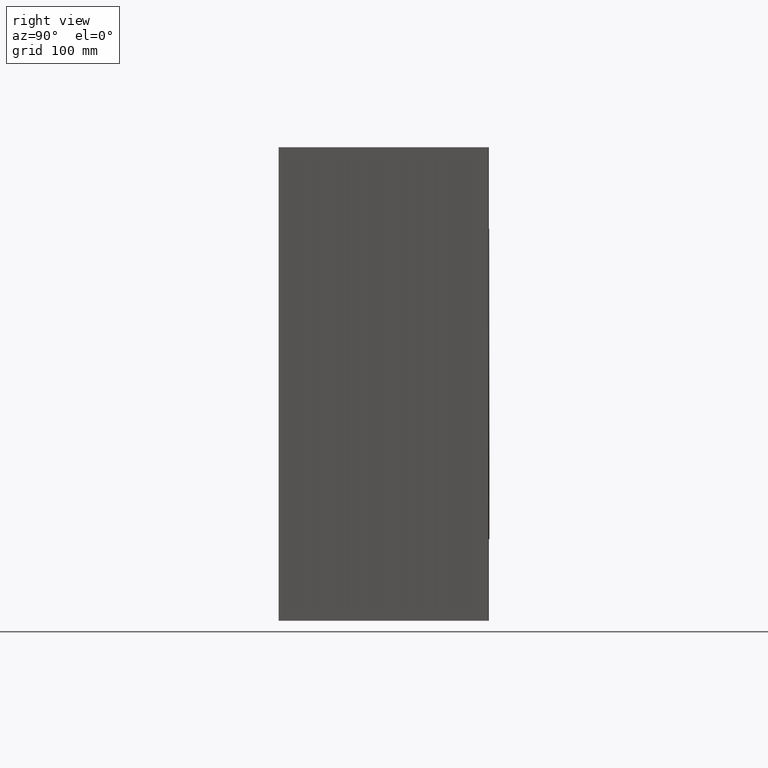
[diagram: clean part render]
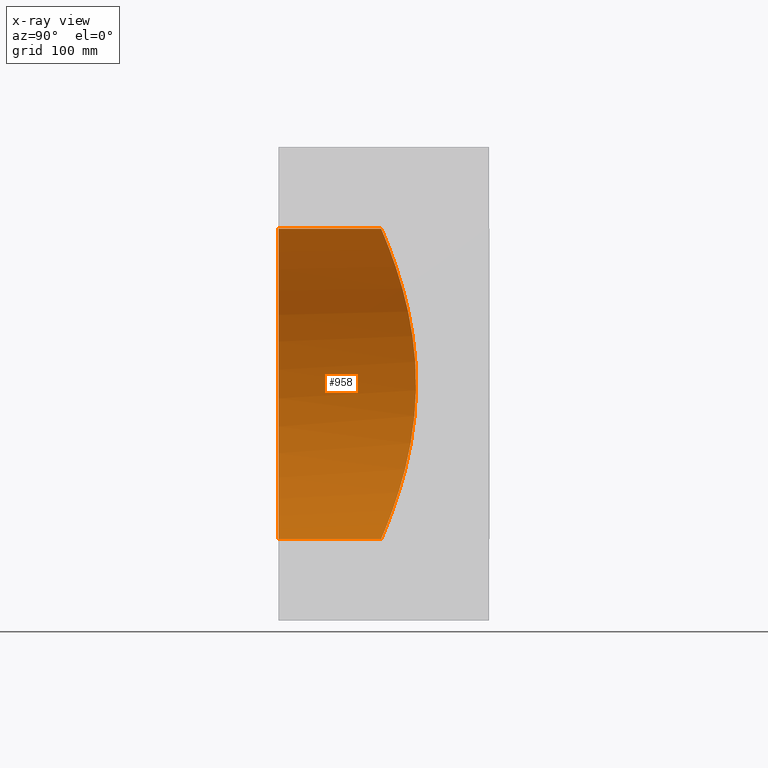
[diagram: x-ray — body ghosted, one internal face saturated and labeled with its STEP entity id]
A machine part, right view, then the same camera in x-ray: the body is ghosted and one INTERNAL B-rep face — a face not visible from any outside direction — is saturated and labeled: STEP entity #958.
In plain terms, the highlighted cylindrical surface (partial cylindrical patch) has radius 254 mm, axis along (0, -1, -0).
Its self-contained STEP definition (entity closure, byte-faithful):
#16 = CARTESIAN_POINT ( 'NONE',  ( -167.7446199373760578, 191.9591785279419582, 190.7742387784999210 ) ) ;
#19 = B_SPLINE_CURVE_WITH_KNOTS ( 'NONE', 3,
 ( #384, #639, #169, #186, #241, #313, #801, #180, #694, #946, #625, #773, #564, #631, #119, #321, #90, #874, #781, #98, #191, #701, #480, #400, #16, #618, #487, #173, #935, #787, #390, #711, #928, #541, #853, #466, #23, #248, #868, #550, #39, #256, #557, #859, #473, #793, #106, #115, #407, #337, #276, #508, #512, #431, #653, #959, #818, #420, #589, #742, #200, #973, #894, #126, #887, #735, #347, #656, #667, #63, #138, #661, #54, #357, #962, #578, #732, #285, #885, #582, #273, #215, #891, #51, #900, #349, #197, #823, #575, #204, #496, #809, #499, #503, #815, #813, #133, #131, #423, #427, #737, #56, #209, #351, #967, #281, #111, #691, #168, #405 ),
 .UNSPECIFIED., .F., .F.,
 ( 4, 2, 2, 2, 2, 2, 2, 2, 2, 2, 2, 2, 2, 2, 2, 2, 2, 2, 2, 2, 2, 2, 2, 2, 2, 2, 2, 2, 2, 2, 2, 2, 2, 2, 2, 2, 2, 2, 2, 2, 2, 2, 2, 2, 2, 2, 2, 2, 2, 2, 2, 2, 2, 2, 4 ),
 ( 0.8039653402823760953, 0.8290662158491932665, 0.8353414347408976148, 0.8416166536326019632, 0.8541670914160105488, 0.8792679669828278310, 0.9043688425496451133, 0.9106440614413493506, 0.9169192803330536989, 0.9294697181164623956, 0.9545705936832795668, 0.9796714692500968491, 0.9922219070335054347, 0.9984971259252097830, 1.004772344816914131, 1.029873220383731081, 1.054974095950548252, 1.080074971517365423, 1.086350190409069771, 1.092625409300773898, 1.105175847084182372, 1.130276722650999321, 1.155377598217816271, 1.167928036001224745, 1.174203254892928872, 1.180478473784633220, 1.205579349351450169, 1.230680224918266896, 1.243230662701675371, 1.249505881593379497, 1.255781100485083845, 1.280881976051900573, 1.305982851618717522, 1.331083727185534471, 1.337358946077238375, 1.343634164968942724, 1.356184602752350976, 1.381285478319167925, 1.406386353885984430, 1.412661572777688557, 1.418936791669392683, 1.431487229452801380, 1.456588105019618329, 1.481688980586435278, 1.494239418369843975, 1.500514637261548323, 1.506789856153252449, 1.531890731720069621, 1.556991607286886570, 1.582092482853703963, 1.588367701745408089, 1.594642920637112438, 1.600918139528816786, 1.604055748974668738, 1.607193358420520912 ),
 .UNSPECIFIED. ) ;
#23 = CARTESIAN_POINT ( 'NONE',  ( -225.6538562742526892, 212.3592979177754785, 116.6219596265445233 ) ) ;
#31 = EDGE_CURVE ( 'NONE', #906, #467, #265, .T. ) ;
#39 = CARTESIAN_POINT ( 'NONE',  ( -232.8237990720853929, 215.3629202603104318, 101.6180321282059253 ) ) ;
#51 = CARTESIAN_POINT ( 'NONE',  ( -155.0348342550607867, 188.3351085430220735, -201.3648420486783550 ) ) ;
#54 = CARTESIAN_POINT ( 'NONE',  ( -213.2197007972301606, 207.4016718087703168, -138.0951427610688711 ) ) ;
#56 = CARTESIAN_POINT ( 'NONE',  ( -16.98756145259244477, 167.9877803526233890, -253.4401756340516840 ) ) ;
#63 = CARTESIAN_POINT ( 'NONE',  ( -219.6829387557973803, 209.9400254619303325, -127.5136056674370195 ) ) ;
#68 = ORIENTED_EDGE ( 'NONE', *, *, #214, .T. ) ;
#90 = CARTESIAN_POINT ( 'NONE',  ( -107.4884534427931442, 177.5681779628506547, 230.1447618988494526 ) ) ;
#93 = CARTESIAN_POINT ( 'NONE',  ( 3.110602869834276550E-14, -3.110602869834277181E-14, 253.9999999999999432 ) ) ;
#98 = CARTESIAN_POINT ( 'NONE',  ( -127.8226734394265520, 181.6402548994499568, 219.6501722694441128 ) ) ;
#100 = CARTESIAN_POINT ( 'NONE',  ( 3.110602869834276550E-14, -5.886160431397169163E-14, 253.9999999999999432 ) ) ;
#106 = CARTESIAN_POINT ( 'NONE',  ( -250.5328124634897904, 223.2700100050191168, 42.03737018607849762 ) ) ;
#111 = CARTESIAN_POINT ( 'NONE',  ( -4.250568631534159536, 167.7624710219972144, -253.9666545677669092 ) ) ;
#115 = CARTESIAN_POINT ( 'NONE',  ( -251.4769673836931929, 223.7114530202344440, 35.77418802373816220 ) ) ;
#119 = CARTESIAN_POINT ( 'NONE',  ( -101.7751034771621619, 176.5439619056177492, 232.7277185874757492 ) ) ;
#126 = CARTESIAN_POINT ( 'NONE',  ( -240.4407538154150643, 218.6740366586252549, -82.30216103953341644 ) ) ;
#131 = CARTESIAN_POINT ( 'NONE',  ( -42.11289270684206798, 169.1885769616677067, -250.6232531080181900 ) ) ;
#133 = CARTESIAN_POINT ( 'NONE',  ( -58.45747839641314414, 170.5795744955916007, -247.3221258806348999 ) ) ;
#138 = CARTESIAN_POINT ( 'NONE',  ( -218.6352207272893509, 209.5232285698341173, -129.3016574617243748 ) ) ;
#168 = CARTESIAN_POINT ( 'NONE',  ( -1.061799262410094924, 167.7481887986639890, -253.9999999999998295 ) ) ;
#169 = CARTESIAN_POINT ( 'NONE',  ( -16.75106011277696183, 167.9252307871824428, 253.5875208976789850 ) ) ;
#173 = CARTESIAN_POINT ( 'NONE',  ( -176.8413384805532758, 194.7282268641729104, 182.3387597661833865 ) ) ;
#176 = CARTESIAN_POINT ( 'NONE',  ( 0.0000000000000000000, 0.0000000000000000000, 0.0000000000000000000 ) ) ;
#180 = CARTESIAN_POINT ( 'NONE',  ( -41.92945206066749364, 169.2175591449280319, 250.5510122075870072 ) ) ;
#186 = CARTESIAN_POINT ( 'NONE',  ( -27.24886296191111512, 168.3708465878000027, 252.5429691466458735 ) ) ;
#187 = ORIENTED_EDGE ( 'NONE', *, *, #31, .F. ) ;
#191 = CARTESIAN_POINT ( 'NONE',  ( -134.8791131022358911, 183.2484444829904930, 215.3860594890611253 ) ) ;
#197 = CARTESIAN_POINT ( 'NONE',  ( -127.8075092663349892, 181.6372749040881445, -219.6578076155993244 ) ) ;
#200 = CARTESIAN_POINT ( 'NONE',  ( -249.4566827714715771, 222.7699610586555536, -47.87315041408866989 ) ) ;
#204 = CARTESIAN_POINT ( 'NONE',  ( -107.5587432652166626, 177.5811682568763672, -230.1118305560276838 ) ) ;
#209 = CARTESIAN_POINT ( 'NONE',  ( -14.86474387199813663, 167.9307268374984687, -253.5735642483337813 ) ) ;
#214 = EDGE_CURVE ( 'NONE', #225, #467, #671, .T. ) ;
#215 = CARTESIAN_POINT ( 'NONE',  ( -167.6757351597067895, 191.9388564708600313, -190.8348171822387087 ) ) ;
#225 = VERTEX_POINT ( 'NONE', #100 ) ;
#241 = CARTESIAN_POINT ( 'NONE',  ( -29.34937931753479035, 168.4711905815276793, 252.3075482883832024 ) ) ;
#248 = CARTESIAN_POINT ( 'NONE',  ( -227.5373199321938671, 213.1381025775584988, 112.9031104826210736 ) ) ;
#256 = CARTESIAN_POINT ( 'NONE',  ( -237.6066913755457790, 217.4212978521460968, 90.15344522223057311 ) ) ;
#265 = LINE ( 'NONE', #806, #426 ) ;
#273 = CARTESIAN_POINT ( 'NONE',  ( -172.2654494099586771, 193.3187507927367506, -186.6678462996951282 ) ) ;
#276 = CARTESIAN_POINT ( 'NONE',  ( -252.5306111584210669, 224.2061640067578878, 27.36335481777674872 ) ) ;
#281 = CARTESIAN_POINT ( 'NONE',  ( -5.312749543296066967, 167.7710370536334494, -253.9466539886837211 ) ) ;
#285 = CARTESIAN_POINT ( 'NONE',  ( -178.2558721717871038, 195.1722142043649626, -180.9560651650307079 ) ) ;
#295 = FACE_OUTER_BOUND ( 'NONE', #481, .T. ) ;
#307 = VECTOR ( 'NONE', #314, 1000.000000000000000 ) ;
#313 = CARTESIAN_POINT ( 'NONE',  ( -33.55234300634887035, 168.6944167794236762, 251.7830917047522234 ) ) ;
#314 = DIRECTION ( 'NONE',  ( 0.0000000000000000000, -1.000000000000000000, -1.224646799147353454E-16 ) ) ;
#316 = ORIENTED_EDGE ( 'NONE', *, *, #492, .F. ) ;
#321 = CARTESIAN_POINT ( 'NONE',  ( -105.5886358643135026, 177.2211625318403208, 231.0225154893605009 ) ) ;
#337 = CARTESIAN_POINT ( 'NONE',  ( -252.2939211728870816, 224.0947977384612386, 29.46650131738460487 ) ) ;
#347 = CARTESIAN_POINT ( 'NONE',  ( -227.6795668315899945, 213.1816034797883503, -112.9047101360959431 ) ) ;
#349 = CARTESIAN_POINT ( 'NONE',  ( -134.8441044775073294, 183.2404362480139639, -215.4073235872259033 ) ) ;
#351 = CARTESIAN_POINT ( 'NONE',  ( -10.62128458197945768, 167.8395178127467489, -253.7867242584065934 ) ) ;
#354 = ORIENTED_EDGE ( 'NONE', *, *, #422, .T. ) ;
#357 = CARTESIAN_POINT ( 'NONE',  ( -206.3468517990314126, 204.7859495735013695, -148.3395220488120003 ) ) ;
#384 = CARTESIAN_POINT ( 'NONE',  ( 3.110656223077602607E-14, 167.7481887986640743, 253.9999999999999432 ) ) ;
#390 = CARTESIAN_POINT ( 'NONE',  ( -191.1033671966806935, 199.3581514455874810, 167.5184378686720379 ) ) ;
#394 = DIRECTION ( 'NONE',  ( 0.0000000000000000000, -1.000000000000000000, -1.224646799147353454E-16 ) ) ;
#400 = CARTESIAN_POINT ( 'NONE',  ( -164.6280477816947609, 191.0487118633849661, 193.4696914031733002 ) ) ;
#405 = CARTESIAN_POINT ( 'NONE',  ( 0.0000000000000000000, 167.7481887986640459, -253.9999999999998863 ) ) ;
#407 = CARTESIAN_POINT ( 'NONE',  ( -251.7667397516346739, 223.8472728448554960, 33.67500728301410362 ) ) ;
#420 = CARTESIAN_POINT ( 'NONE',  ( -250.9095640811042074, 223.4461247220338009, -39.55775245291005149 ) ) ;
#422 = EDGE_CURVE ( 'NONE', #784, #225, #848, .T. ) ;
#423 = CARTESIAN_POINT ( 'NONE',  ( -33.82830732110428329, 168.6541359738757819, -251.8788437250852326 ) ) ;
#426 = VECTOR ( 'NONE', #554, 1000.000000000000000 ) ;
#427 = CARTESIAN_POINT ( 'NONE',  ( -23.32594556870494884, 168.2034053655936532, -252.9354797307147749 ) ) ;
#431 = CARTESIAN_POINT ( 'NONE',  ( -254.0029112069883013, 224.9016425665687677, -8.284842479212453981 ) ) ;
#466 = CARTESIAN_POINT ( 'NONE',  ( -224.6880616091489173, 211.9627979871164882, 118.4719213125589761 ) ) ;
#467 = VERTEX_POINT ( 'NONE', #948 ) ;
#468 = CARTESIAN_POINT ( 'NONE',  ( 0.0000000000000000000, -2.775557561562891351E-14, 0.0000000000000000000 ) ) ;
#473 = CARTESIAN_POINT ( 'NONE',  ( -247.3179748971849392, 221.7805178990628860, 58.47948239573771190 ) ) ;
#480 = CARTESIAN_POINT ( 'NONE',  ( -155.1028611554629606, 188.3535216254281579, 201.3126049048931918 ) ) ;
#481 = EDGE_LOOP ( 'NONE', ( #316, #354, #68, #187 ) ) ;
#487 = CARTESIAN_POINT ( 'NONE',  ( -173.8469818141246890, 193.8013806957911243, 185.1958671860227241 ) ) ;
#492 = EDGE_CURVE ( 'NONE', #784, #906, #19, .T. ) ;
#496 = CARTESIAN_POINT ( 'NONE',  ( -105.6638235753479194, 177.2347595466483199, -230.9881770003695181 ) ) ;
#499 = CARTESIAN_POINT ( 'NONE',  ( -99.91497458688635902, 176.2228815965570732, -233.5324013627754312 ) ) ;
#503 = CARTESIAN_POINT ( 'NONE',  ( -90.25558593553056141, 174.6045888932444257, -237.5712173956172819 ) ) ;
#508 = CARTESIAN_POINT ( 'NONE',  ( -253.5811056219069428, 224.7010958030246002, 16.85310103332201237 ) ) ;
#512 = CARTESIAN_POINT ( 'NONE',  ( -253.9970577638513873, 224.8988679464332563, 8.462397050325794368 ) ) ;
#541 = CARTESIAN_POINT ( 'NONE',  ( -215.5063084306695202, 208.2720019675699916, 134.6859920144318608 ) ) ;
#550 = CARTESIAN_POINT ( 'NONE',  ( -231.1341190355670676, 214.6440126614410531, 105.4053888305886773 ) ) ;
#554 = DIRECTION ( 'NONE',  ( 0.0000000000000000000, -1.000000000000000000, -1.224646799147353454E-16 ) ) ;
#557 = CARTESIAN_POINT ( 'NONE',  ( -240.4145002452445397, 218.6624483583009351, 82.37393339020036365 ) ) ;
#564 = CARTESIAN_POINT ( 'NONE',  ( -90.24374401713588156, 174.6032327716396537, 237.5743784156504148 ) ) ;
#575 = CARTESIAN_POINT ( 'NONE',  ( -113.1972622661208732, 178.6399443827565960, -227.4197244612046802 ) ) ;
#578 = CARTESIAN_POINT ( 'NONE',  ( -191.0534302031509526, 199.3410605539008031, -167.5759735541234647 ) ) ;
#582 = CARTESIAN_POINT ( 'NONE',  ( -173.7828399568214479, 193.7817148077005527, -185.2560591087325861 ) ) ;
#589 = CARTESIAN_POINT ( 'NONE',  ( -250.5729258050987767, 223.2890096238707827, -41.63724912714763349 ) ) ;
#618 = CARTESIAN_POINT ( 'NONE',  ( -172.3312526909245435, 193.3387349854169770, 186.6070906231578590 ) ) ;
#621 = DIRECTION ( 'NONE',  ( 0.0000000000000000000, 1.224646799147353454E-16, -1.000000000000000000 ) ) ;
#625 = CARTESIAN_POINT ( 'NONE',  ( -66.50524338809792368, 171.4347069064282323, 245.2800817273701171 ) ) ;
#631 = CARTESIAN_POINT ( 'NONE',  ( -99.86007571886582923, 176.2135294729258987, 233.5557967398490860 ) ) ;
#639 = CARTESIAN_POINT ( 'NONE',  ( -8.368078583990106623, 167.7481887986640743, 253.9999999999998863 ) ) ;
#653 = CARTESIAN_POINT ( 'NONE',  ( -253.5927651043659523, 224.7066422920947559, -16.64137637730571839 ) ) ;
#656 = CARTESIAN_POINT ( 'NONE',  ( -222.7477187444005722, 211.1723630920878918, -122.0810999474792169 ) ) ;
#661 = CARTESIAN_POINT ( 'NONE',  ( -215.4330756774392057, 208.2603102066157135, -134.6168762207670113 ) ) ;
#667 = CARTESIAN_POINT ( 'NONE',  ( -221.7386536109239614, 210.7643746062970251, -123.9043288408791597 ) ) ;
#671 = CIRCLE ( 'NONE', #807, 253.9999999999999432 ) ;
#691 = CARTESIAN_POINT ( 'NONE',  ( -2.125679766164888296, 167.7510468946478568, -253.9933275729237607 ) ) ;
#694 = CARTESIAN_POINT ( 'NONE',  ( -46.07677825463157006, 169.5265976628233489, 249.8210061937363946 ) ) ;
#695 = DIRECTION ( 'NONE',  ( 0.0000000000000000000, 1.224646799147353454E-16, -1.000000000000000000 ) ) ;
#701 = CARTESIAN_POINT ( 'NONE',  ( -148.5192264260104196, 186.6050278903993842, 206.2172862669145843 ) ) ;
#711 = CARTESIAN_POINT ( 'NONE',  ( -201.4868279076510191, 203.0006391196800735, 154.8740848547043072 ) ) ;
#732 = CARTESIAN_POINT ( 'NONE',  ( -185.5431530734376508, 197.4896669991088629, -173.6599956447450381 ) ) ;
#735 = CARTESIAN_POINT ( 'NONE',  ( -231.2436329174383332, 214.6827662936541401, -105.4091671170124727 ) ) ;
#737 = CARTESIAN_POINT ( 'NONE',  ( -21.21812507361642730, 168.1241340779811253, -253.1210995509559041 ) ) ;
#742 = CARTESIAN_POINT ( 'NONE',  ( -249.8466620139826659, 222.9510096444398073, -45.79407321776893980 ) ) ;
#770 = CYLINDRICAL_SURFACE ( 'NONE', #965, 253.9999999999999432 ) ;
#773 = CARTESIAN_POINT ( 'NONE',  ( -82.41914399061221275, 173.4489362519615270, 240.4003964101353006 ) ) ;
#781 = CARTESIAN_POINT ( 'NONE',  ( -116.8678522845038401, 179.3663746352331145, 225.5551232142755680 ) ) ;
#783 = DIRECTION ( 'NONE',  ( 0.0000000000000000000, -1.000000000000000000, -1.224646799147353454E-16 ) ) ;
#784 = VERTEX_POINT ( 'NONE', #974 ) ;
#787 = CARTESIAN_POINT ( 'NONE',  ( -185.6002467156843636, 197.5085211093549447, 173.5988375787424900 ) ) ;
#793 = CARTESIAN_POINT ( 'NONE',  ( -249.8026381578164887, 222.9299344460050918, 46.17520559266102964 ) ) ;
#801 = CARTESIAN_POINT ( 'NONE',  ( -35.65564959980908810, 168.8173939891871953, 251.4938305778178176 ) ) ;
#806 = CARTESIAN_POINT ( 'NONE',  ( 0.0000000000000000000, 3.110602869834277181E-14, -253.9999999999999432 ) ) ;
#807 = AXIS2_PLACEMENT_3D ( 'NONE', #468, #783, #695 ) ;
#809 = CARTESIAN_POINT ( 'NONE',  ( -101.8425918585127334, 176.5557100610909629, -232.6982337923017781 ) ) ;
#813 = CARTESIAN_POINT ( 'NONE',  ( -66.51745358822454079, 171.4361866751068533, -245.2765090473451437 ) ) ;
#815 = CARTESIAN_POINT ( 'NONE',  ( -82.41650494590636811, 173.4486679481541671, -240.4010341800039328 ) ) ;
#818 = CARTESIAN_POINT ( 'NONE',  ( -251.8407089734128306, 223.8816067344820340, -33.31602932149660745 ) ) ;
#823 = CARTESIAN_POINT ( 'NONE',  ( -116.8946541439714224, 179.3718542813997203, -225.5409448423950494 ) ) ;
#848 = LINE ( 'NONE', #93, #307 ) ;
#853 = CARTESIAN_POINT ( 'NONE',  ( -219.7652597601259288, 209.9575627270870086, 127.6258959193556137 ) ) ;
#859 = CARTESIAN_POINT ( 'NONE',  ( -245.2701206374213996, 220.8420396954591070, 66.53694276752312931 ) ) ;
#868 = CARTESIAN_POINT ( 'NONE',  ( -228.4546478462760319, 213.5202546417447138, 111.0350986024366193 ) ) ;
#874 = CARTESIAN_POINT ( 'NONE',  ( -113.1544321408874936, 178.6314950552145717, 227.4414005823912532 ) ) ;
#885 = CARTESIAN_POINT ( 'NONE',  ( -176.7783910252812518, 194.7085624828760331, -182.3997899298931884 ) ) ;
#887 = CARTESIAN_POINT ( 'NONE',  ( -237.6242369067083189, 217.4289590129565113, -90.10789261580711695 ) ) ;
#891 = CARTESIAN_POINT ( 'NONE',  ( -164.5583495946700339, 191.0285795620327178, -193.5289369580791288 ) ) ;
#894 = CARTESIAN_POINT ( 'NONE',  ( -245.3169557452046377, 220.8632624138164999, -66.37012152322471081 ) ) ;
#900 = CARTESIAN_POINT ( 'NONE',  ( -148.4577797731553517, 186.5893045224829905, -206.2608426051296249 ) ) ;
#906 = VERTEX_POINT ( 'NONE', #919 ) ;
#919 = CARTESIAN_POINT ( 'NONE',  ( 0.0000000000000000000, 167.7481887986640459, -253.9999999999998863 ) ) ;
#928 = CARTESIAN_POINT ( 'NONE',  ( -206.3671282056657503, 204.7935913853615943, 148.3101271473824738 ) ) ;
#935 = CARTESIAN_POINT ( 'NONE',  ( -178.3180073810126487, 195.1918041904223742, 180.8948278503726499 ) ) ;
#946 = CARTESIAN_POINT ( 'NONE',  ( -58.41595703461554479, 170.5747115550514934, 247.3337714175711426 ) ) ;
#948 = CARTESIAN_POINT ( 'NONE',  ( 0.0000000000000000000, 3.350453082713856719E-15, -253.9999999999999432 ) ) ;
#958 = ADVANCED_FACE ( 'NONE', ( #295 ), #770, .F. ) ;
#959 = CARTESIAN_POINT ( 'NONE',  ( -252.3564952005708619, 224.1241054277326157, -29.15057135523408505 ) ) ;
#962 = CARTESIAN_POINT ( 'NONE',  ( -201.4552936771972611, 202.9891534743973409, -154.9157343669028251 ) ) ;
#965 = AXIS2_PLACEMENT_3D ( 'NONE', #176, #394, #621 ) ;
#967 = CARTESIAN_POINT ( 'NONE',  ( -8.498502402339271455, 167.8052854307655082, -253.8666755916375166 ) ) ;
#973 = CARTESIAN_POINT ( 'NONE',  ( -247.3767462030745037, 221.8074619427204652, -58.24385973340700673 ) ) ;
#974 = CARTESIAN_POINT ( 'NONE',  ( 3.110656223077602607E-14, 167.7481887986640743, 253.9999999999999432 ) ) ;